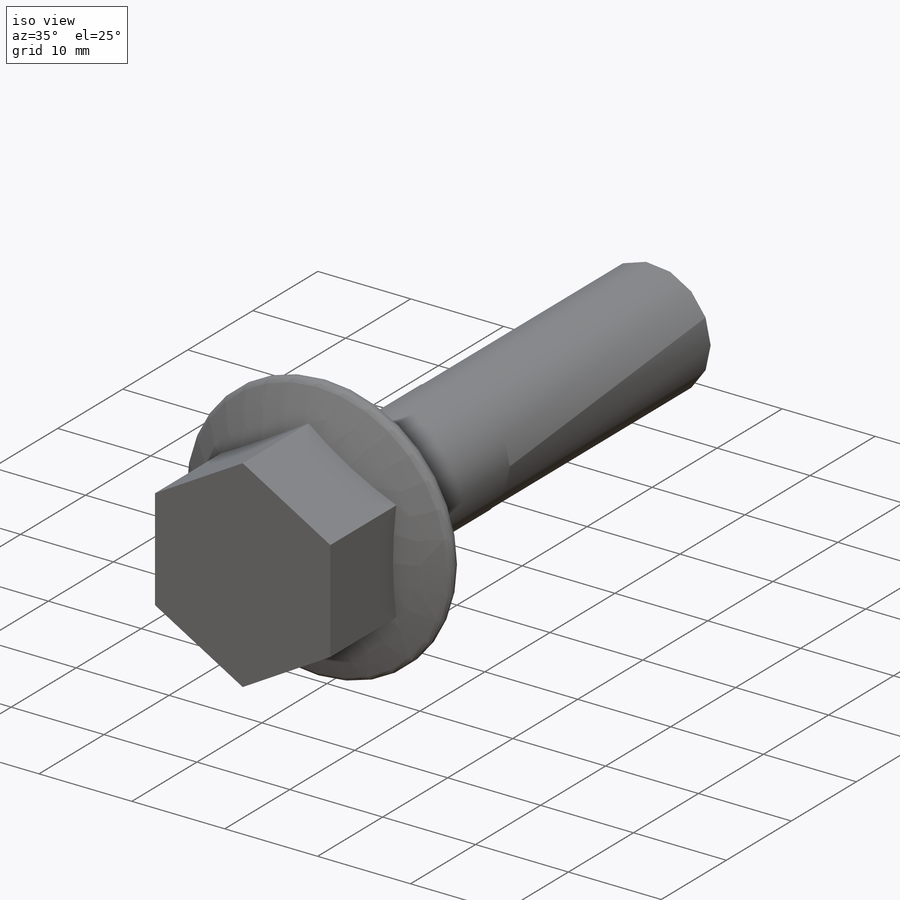
[diagram: iso view]
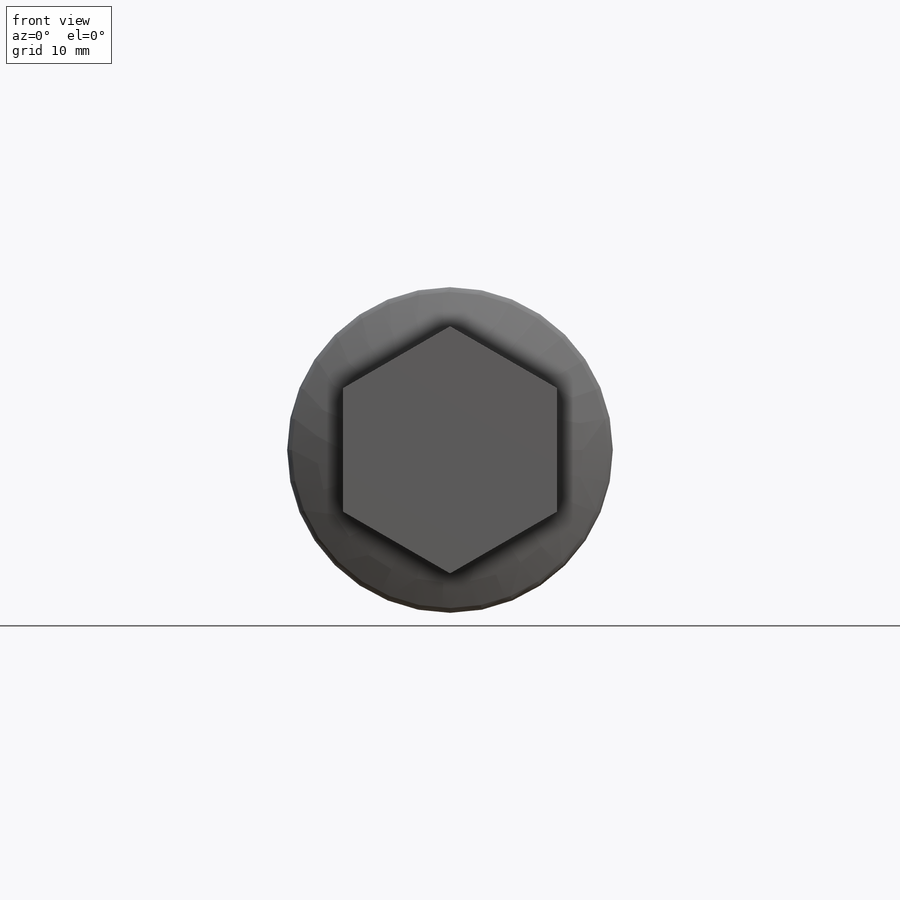
[diagram: front view]
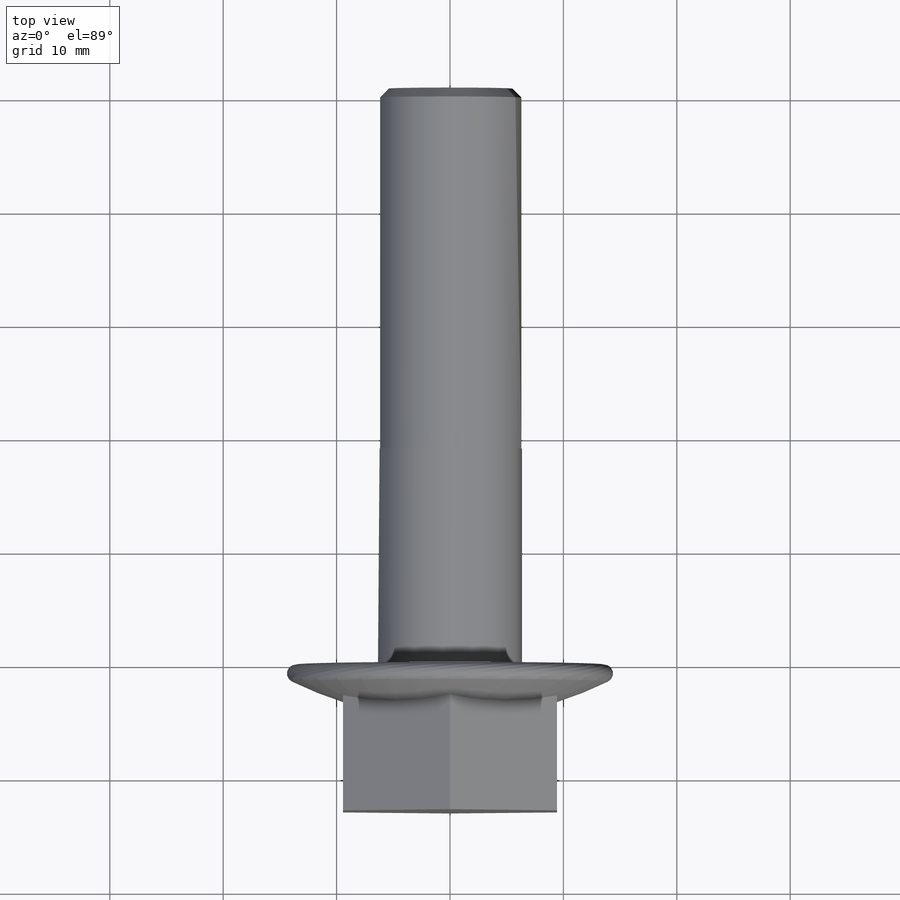
[diagram: top view]
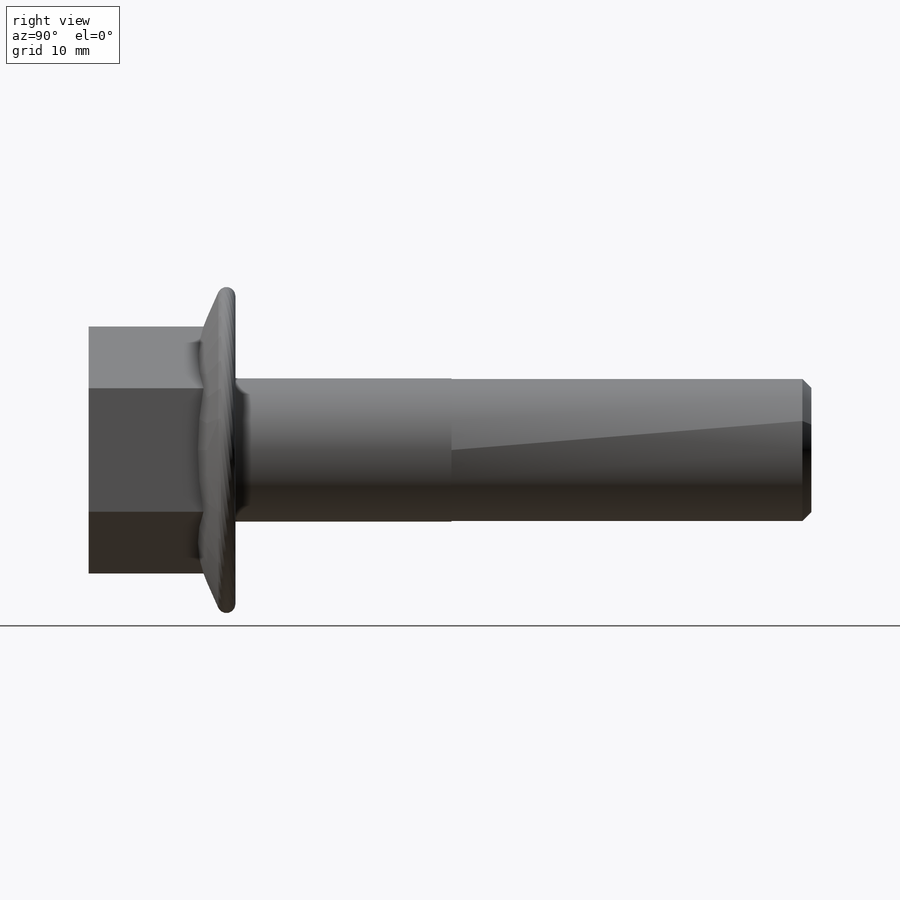
[diagram: right view]
SOLIDWORKS PART (.sldprt)
format: sldprt  version: not decoded by parser v0  size: 1,037,312 bytes
history: native  units: mm
features: sketch x4, plane x3, extrude x2, material x1, revolve x1, fillet x1, cut_revolve x1, chamfer x1 + 1 further entry (+8 scaffold rows collapsed; 1 parser-record rows omitted)
feature tree (24):
  scaffold x8  (default folders/planes/origin — collapsed)
  material  "Material <not specified>"
  plane  "Plane1"
  plane  "Plane2"
  plane  "Plane3"
  parser-record x1  (decoder bookkeeping rows leaked as tree rows — omitted from the tree; the rows remain in map.json)
  "Design Table"
  sketch  "Head Sketch"  dims[D1=60.0deg D2=60.0deg Width across flats=18.8722mm]
  extrude  "Head"  Depth=12.954mm Head height=12.954mm
  sketch  "Shank Sketch"  dims[Shank diameter=12.7mm]
  extrude  "Shank"  Depth=31.75mm Shank length=31.75mm
  sketch  "Sketch3"  dims[c1.D1=~34.782901mm c1.D2=2.5mm c1.D3=17.0mm c2.D2=27.178mm c2.D3=4.7625mm]
  revolve  "Flange"  Angle=360deg Flange diameter=27.178mm
  fillet  "Fillet2"  Radius=0.5mm
  sketch  "Thread End"  dims[c1.D1=1.0mm c1.D2=1.1mm c2.D1=0.05mm c2.Length of thread=~30.95625mm]
  cut_revolve  "Thread Cut"  Angle=360deg
  chamfer  "Chamfer1"  Distance=0.79375mm Angle=45deg
decode coverage: 10 of 10 modeling features carry decoded parameters; 1 rows unclassified (native names shown)
note: ~ marks probable driven/reference dimensions
note: suppression state not decoded; provenance and decode notes live in map.json
